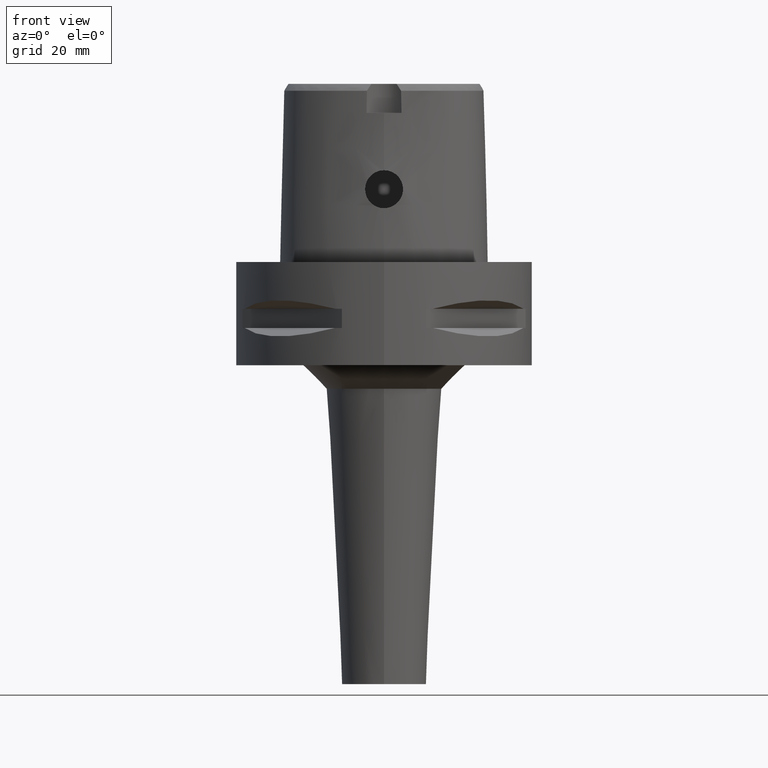
[diagram: clean part render]
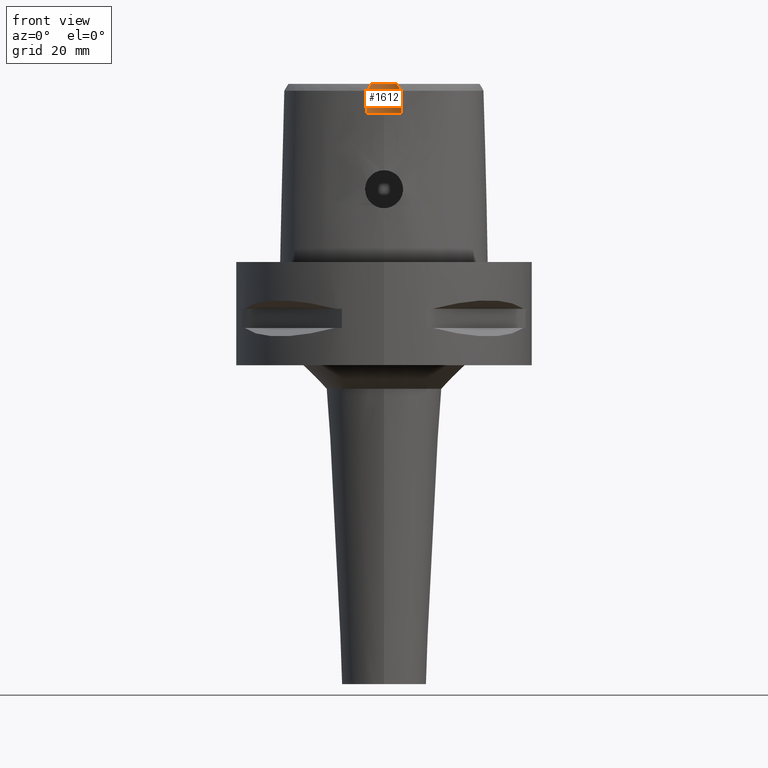
[diagram: same view with one face highlighted and labeled with its STEP entity id]
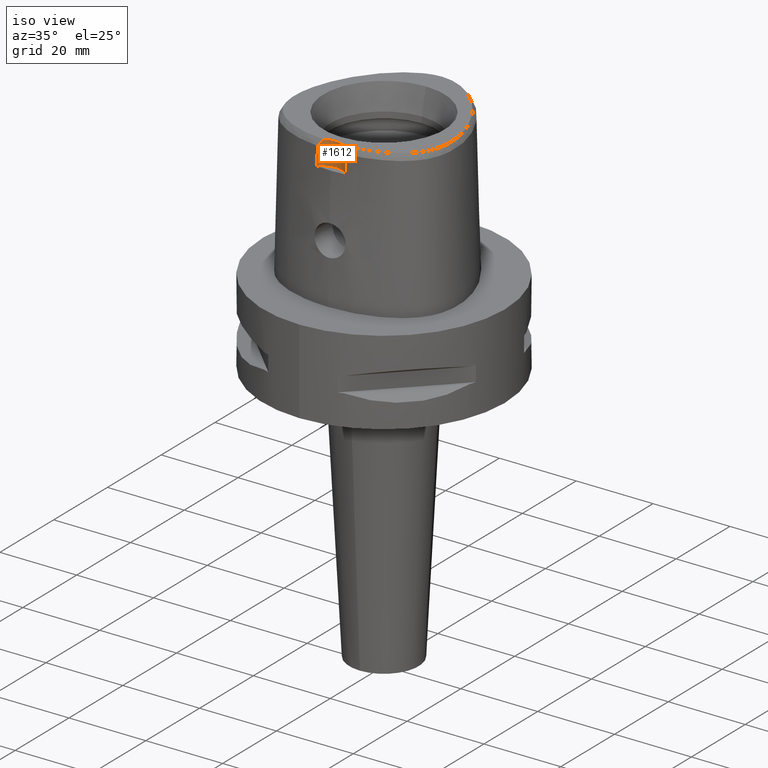
[diagram: same view with one face highlighted and labeled with its STEP entity id]
A machine part, front view. The second image highlights one B-rep face of the part: STEP entity #1612.
A second angle (iso view) of the same face is appended — the face is thin or edge-on in the first view.
In plain terms, the highlighted cylindrical surface (edge-blend (fillet) strip) has radius 5 mm, axis along (0, 0, 1).
Its self-contained STEP definition (entity closure, byte-faithful):
#17=CARTESIAN_POINT('',(0.E0,-2.3E1,3.8E1));
#18=DIRECTION('',(0.E0,0.E0,1.E0));
#19=DIRECTION('',(5.364574965210E-1,8.439273395420E-1,0.E0));
#20=AXIS2_PLACEMENT_3D('',#17,#18,#19);
#26=CARTESIAN_POINT('',(0.E0,-2.3E1,3.8E1));
#27=DIRECTION('',(0.E0,0.E0,1.E0));
#28=DIRECTION('',(0.E0,1.E0,0.E0));
#29=AXIS2_PLACEMENT_3D('',#26,#27,#28);
#136=CARTESIAN_POINT('',(3.637738219117E0,-1.956971420299E1,3.652185956444E1));
#137=CARTESIAN_POINT('',(3.538536273609E0,-1.946451284953E1,3.671639311911E1));
#138=CARTESIAN_POINT('',(3.334098632793E0,-1.926602617850E1,3.708535300827E1));
#139=CARTESIAN_POINT('',(3.014431591359E0,-1.900393218886E1,3.757690690227E1));
#140=CARTESIAN_POINT('',(2.793767706676E0,-1.885122769916E1,3.786560215335E1));
#141=CARTESIAN_POINT('',(2.682287482607E0,-1.878036330229E1,3.8E1));
#189=CARTESIAN_POINT('',(-2.682279906005E0,-1.878035848610E1,3.8E1));
#190=CARTESIAN_POINT('',(-2.797939424828E0,-1.885387923478E1,3.786056636537E1));
#191=CARTESIAN_POINT('',(-3.023213750519E0,-1.901046786247E1,3.756458643908E1));
#192=CARTESIAN_POINT('',(-3.340820240641E0,-1.927223927761E1,3.707376897344E1));
#193=CARTESIAN_POINT('',(-3.541120769139E0,-1.946725359577E1,3.671132817198E1));
#194=CARTESIAN_POINT('',(-3.637738201364E0,-1.956971413237E1,3.652186244848E1));
#249=CARTESIAN_POINT('',(-3.637738201364E0,-1.956971413237E1,3.652186244848E1));
#250=CARTESIAN_POINT('',(-3.649042726833E0,-1.958170231834E1,3.599710491520E1));
#251=CARTESIAN_POINT('',(-3.671106183707E0,-1.960533297179E1,3.494764182412E1));
#252=CARTESIAN_POINT('',(-3.704089539557E0,-1.964135162194E1,3.337369009748E1));
#253=CARTESIAN_POINT('',(-3.726005756395E0,-1.966575923510E1,3.232454432382E1));
#254=CARTESIAN_POINT('',(-3.736696126116E0,-1.967778323257E1,3.18E1));
#909=CARTESIAN_POINT('',(3.736696120838E0,-1.967778323292E1,3.180000004973E1));
#910=CARTESIAN_POINT('',(3.726005752326E0,-1.966575923680E1,3.232454431400E1));
#911=CARTESIAN_POINT('',(3.704089546608E0,-1.964135163374E1,3.337368958251E1));
#912=CARTESIAN_POINT('',(3.671106187705E0,-1.960533295284E1,3.494764256979E1));
#913=CARTESIAN_POINT('',(3.649042743234E0,-1.958170238761E1,3.599710209057E1));
#914=CARTESIAN_POINT('',(3.637738219117E0,-1.956971420299E1,3.652185956444E1));
#946=CARTESIAN_POINT('',(0.E0,-2.3E1,3.18E1));
#947=DIRECTION('',(0.E0,0.E0,-1.E0));
#948=DIRECTION('',(-7.473444622799E-1,6.644367951127E-1,0.E0));
#949=AXIS2_PLACEMENT_3D('',#946,#947,#948);
#954=CARTESIAN_POINT('',(0.E0,-2.3E1,3.18E1));
#955=DIRECTION('',(0.E0,0.E0,-1.E0));
#956=DIRECTION('',(0.E0,1.E0,0.E0));
#957=AXIS2_PLACEMENT_3D('',#954,#955,#956);
#1414=CARTESIAN_POINT('',(0.E0,-1.8E1,3.8E1));
#1415=CARTESIAN_POINT('',(-2.682279906007E0,-1.878035848610E1,3.8E1));
#1416=VERTEX_POINT('',#1414);
#1417=VERTEX_POINT('',#1415);
#1418=CARTESIAN_POINT('',(2.682287482605E0,-1.878036330229E1,3.8E1));
#1419=VERTEX_POINT('',#1418);
#1425=VERTEX_POINT('',#136);
#1426=VERTEX_POINT('',#909);
#1427=CARTESIAN_POINT('',(0.E0,-1.8E1,3.18E1));
#1428=VERTEX_POINT('',#1427);
#1429=CARTESIAN_POINT('',(-3.736722311399E0,-1.967781602444E1,3.18E1));
#1430=VERTEX_POINT('',#1429);
#1431=VERTEX_POINT('',#249);
#1591=CARTESIAN_POINT('',(0.E0,-2.3E1,3.8E1));
#1592=DIRECTION('',(0.E0,0.E0,1.E0));
#1593=DIRECTION('',(0.E0,1.E0,0.E0));
#1594=AXIS2_PLACEMENT_3D('',#1591,#1592,#1593);
#1595=CYLINDRICAL_SURFACE('',#1594,5.E0);
#1596=ORIENTED_EDGE('',*,*,#1576,.F.);
#1597=ORIENTED_EDGE('',*,*,#1574,.F.);
#1599=ORIENTED_EDGE('',*,*,#1598,.F.);
#1601=ORIENTED_EDGE('',*,*,#1600,.F.);
#1603=ORIENTED_EDGE('',*,*,#1602,.F.);
#1605=ORIENTED_EDGE('',*,*,#1604,.F.);
#1607=ORIENTED_EDGE('',*,*,#1606,.F.);
#1609=ORIENTED_EDGE('',*,*,#1608,.F.);
#1610=EDGE_LOOP('',(#1596,#1597,#1599,#1601,#1603,#1605,#1607,#1609));
#1611=FACE_OUTER_BOUND('',#1610,.F.);
#21=CIRCLE('',#20,5.E0);
#30=CIRCLE('',#29,5.E0);
#142=B_SPLINE_CURVE_WITH_KNOTS('',3,(#136,#137,#138,#139,#140,#141),
.UNSPECIFIED.,.F.,.F.,(4,1,1,4),(0.E0,3.333333333333E-1,6.666666666667E-1,1.E0),
.UNSPECIFIED.);
#195=B_SPLINE_CURVE_WITH_KNOTS('',3,(#189,#190,#191,#192,#193,#194),
.UNSPECIFIED.,.F.,.F.,(4,1,1,4),(0.E0,3.333333333333E-1,6.666666666667E-1,1.E0),
.UNSPECIFIED.);
#255=B_SPLINE_CURVE_WITH_KNOTS('',3,(#249,#250,#251,#252,#253,#254),
.UNSPECIFIED.,.F.,.F.,(4,1,1,4),(0.E0,3.333333333333E-1,6.666666666667E-1,1.E0),
.UNSPECIFIED.);
#915=B_SPLINE_CURVE_WITH_KNOTS('',3,(#909,#910,#911,#912,#913,#914),
.UNSPECIFIED.,.F.,.F.,(4,1,1,4),(0.E0,3.333333333333E-1,6.666666666667E-1,1.E0),
.UNSPECIFIED.);
#950=CIRCLE('',#949,5.E0);
#958=CIRCLE('',#957,5.E0);
#1574=EDGE_CURVE('',#1419,#1416,#21,.T.);
#1576=EDGE_CURVE('',#1416,#1417,#30,.T.);
#1598=EDGE_CURVE('',#1425,#1419,#142,.T.);
#1600=EDGE_CURVE('',#1426,#1425,#915,.T.);
#1602=EDGE_CURVE('',#1428,#1426,#958,.T.);
#1604=EDGE_CURVE('',#1430,#1428,#950,.T.);
#1606=EDGE_CURVE('',#1431,#1430,#255,.T.);
#1608=EDGE_CURVE('',#1417,#1431,#195,.T.);
#1612=ADVANCED_FACE('',(#1611),#1595,.F.);